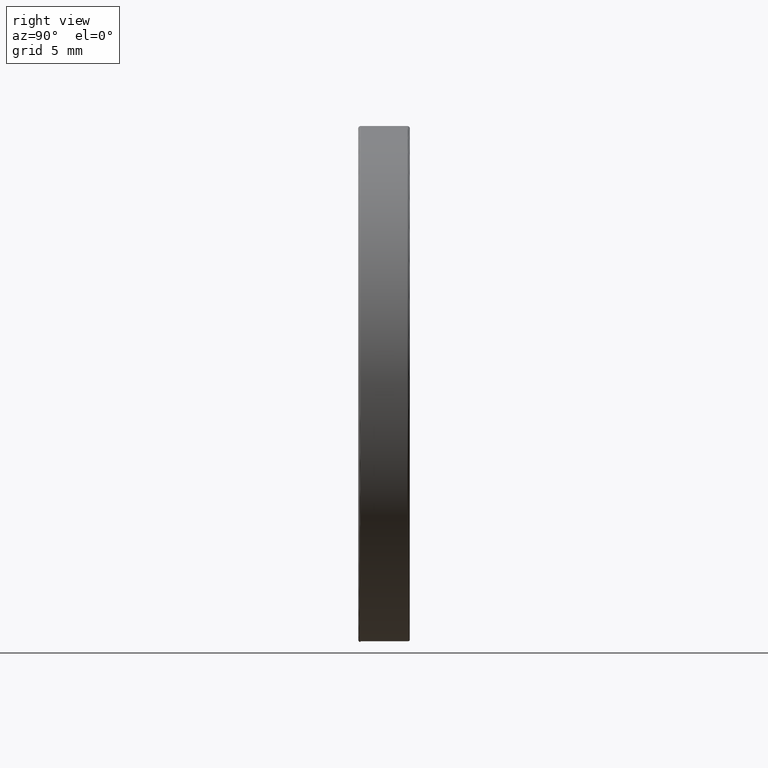
[diagram: clean part render]
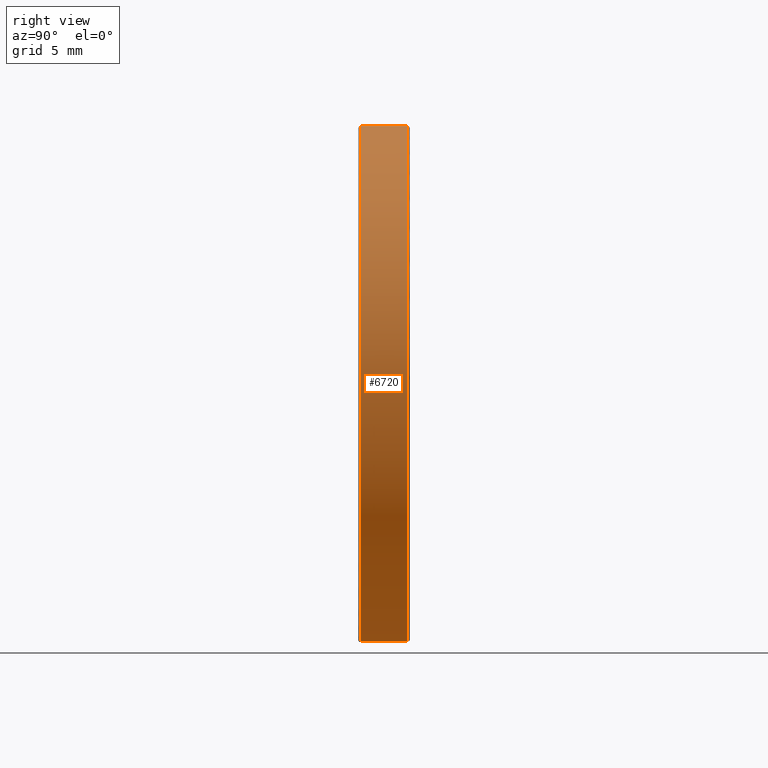
[diagram: same view with one face highlighted and labeled with its STEP entity id]
A machine part, right view. The second image highlights one B-rep face of the part: STEP entity #6720.
In plain terms, the highlighted cylindrical surface (bore or boss wall) has radius 10 mm, axis along (-0, -1, -0).
Its self-contained STEP definition (entity closure, byte-faithful):
#543 = EDGE_CURVE ( 'NONE', #9661, #9661, #9736, .T. ) ;
#906 = DIRECTION ( 'NONE',  ( 0.0000000000000000000, 0.0000000000000000000, 1.000000000000000000 ) ) ;
#948 = ORIENTED_EDGE ( 'NONE', *, *, #10134, .T. ) ;
#2147 = AXIS2_PLACEMENT_3D ( 'NONE', #7211, #4761, #14243 ) ;
#2651 = FACE_OUTER_BOUND ( 'NONE', #13076, .T. ) ;
#3853 = EDGE_LOOP ( 'NONE', ( #948 ) ) ;
#4541 = CIRCLE ( 'NONE', #5264, 10.00000000000000000 ) ;
#4761 = DIRECTION ( 'NONE',  ( -0.0000000000000000000, -1.000000000000000000, -0.0000000000000000000 ) ) ;
#4918 = AXIS2_PLACEMENT_3D ( 'NONE', #12940, #10456, #906 ) ;
#5264 = AXIS2_PLACEMENT_3D ( 'NONE', #13881, #15225, #9230 ) ;
#5784 = FACE_OUTER_BOUND ( 'NONE', #3853, .T. ) ;
#6720 = ADVANCED_FACE ( 'NONE', ( #2651, #5784 ), #6889, .T. ) ;
#6889 = CYLINDRICAL_SURFACE ( 'NONE', #2147, 10.00000000000000000 ) ;
#7211 = CARTESIAN_POINT ( 'NONE',  ( 0.0000000000000000000, 2.000000000000000000, 0.0000000000000000000 ) ) ;
#7231 = CARTESIAN_POINT ( 'NONE',  ( 0.0000000000000000000, 1.899999999999999900, 10.00000000000000000 ) ) ;
#8727 = VERTEX_POINT ( 'NONE', #7231 ) ;
#9230 = DIRECTION ( 'NONE',  ( 0.0000000000000000000, 0.0000000000000000000, 1.000000000000000000 ) ) ;
#9661 = VERTEX_POINT ( 'NONE', #10950 ) ;
#9736 = CIRCLE ( 'NONE', #4918, 10.00000000000000000 ) ;
#10134 = EDGE_CURVE ( 'NONE', #8727, #8727, #4541, .T. ) ;
#10456 = DIRECTION ( 'NONE',  ( 0.0000000000000000000, 1.000000000000000000, 0.0000000000000000000 ) ) ;
#10706 = ORIENTED_EDGE ( 'NONE', *, *, #543, .T. ) ;
#10950 = CARTESIAN_POINT ( 'NONE',  ( 0.0000000000000000000, 0.1000000000000000500, 10.00000000000000000 ) ) ;
#12940 = CARTESIAN_POINT ( 'NONE',  ( 0.0000000000000000000, 0.1000000000000000500, 0.0000000000000000000 ) ) ;
#13076 = EDGE_LOOP ( 'NONE', ( #10706 ) ) ;
#13881 = CARTESIAN_POINT ( 'NONE',  ( 0.0000000000000000000, 1.899999999999999900, 0.0000000000000000000 ) ) ;
#14243 = DIRECTION ( 'NONE',  ( 0.0000000000000000000, 0.0000000000000000000, -1.000000000000000000 ) ) ;
#15225 = DIRECTION ( 'NONE',  ( -0.0000000000000000000, -1.000000000000000000, -0.0000000000000000000 ) ) ;